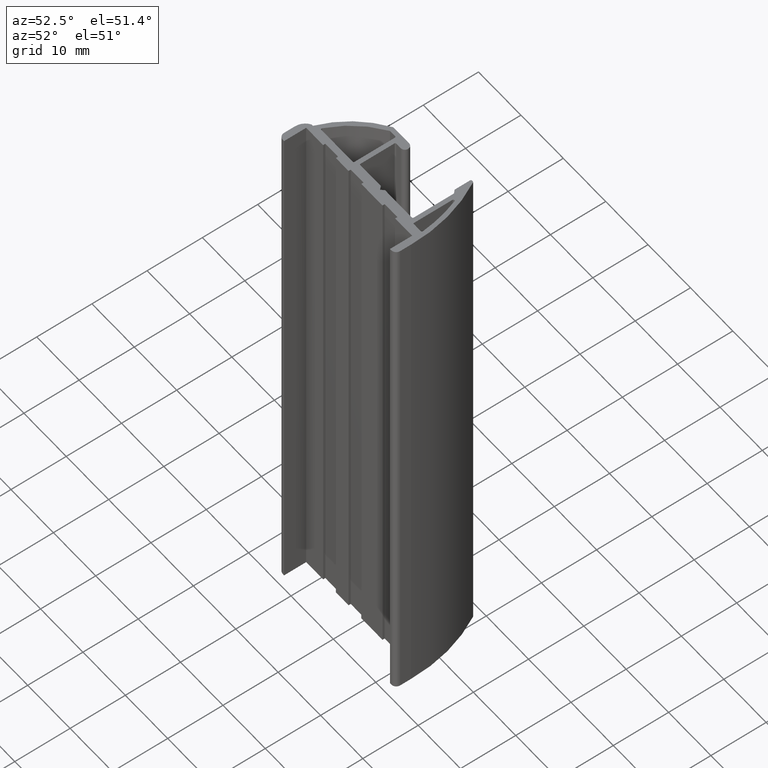
[diagram: clean part render]
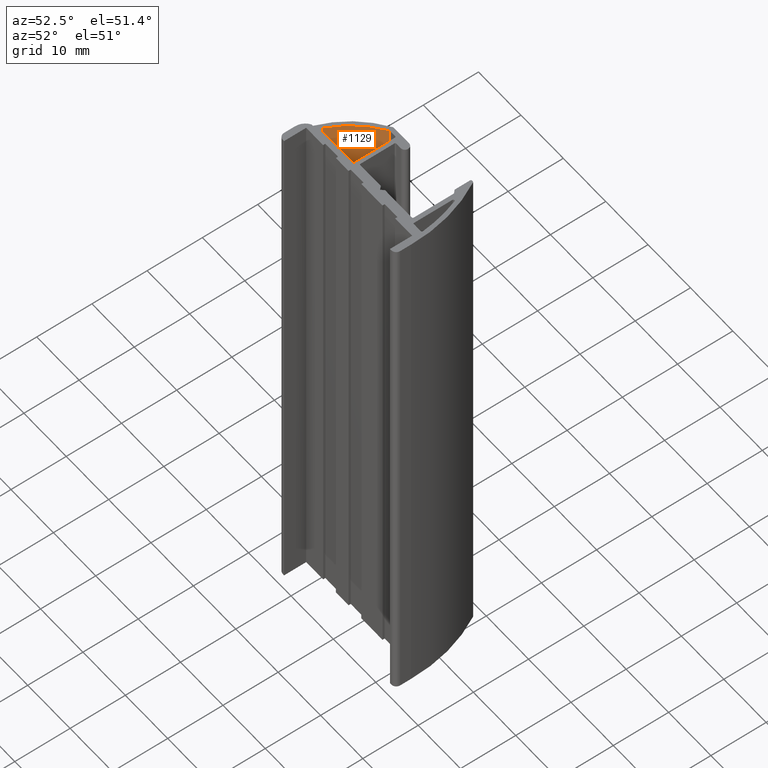
[diagram: same view with one face highlighted and labeled with its STEP entity id]
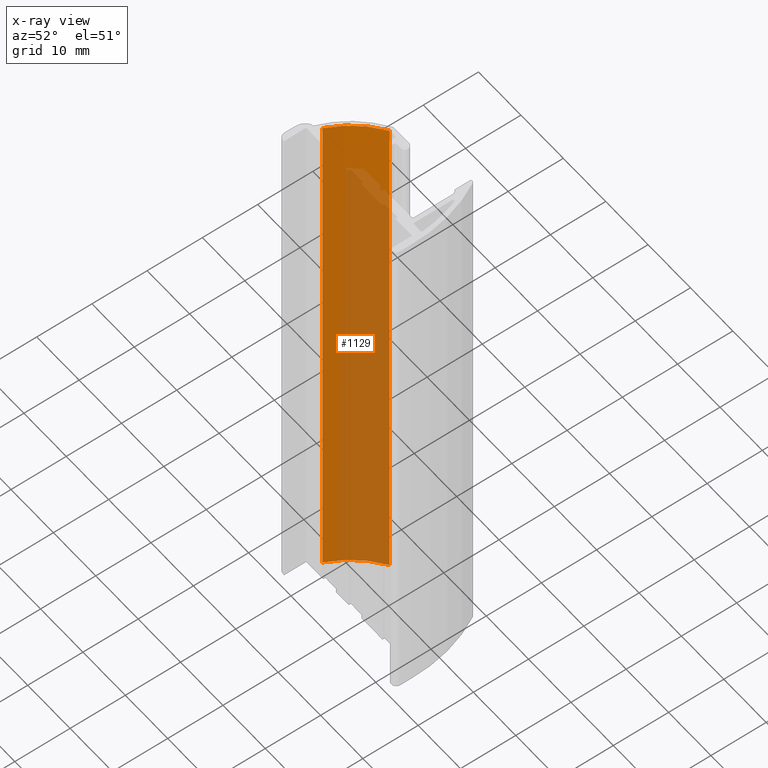
[diagram: x-ray of the same camera — body ghosted, the highlighted face saturated]
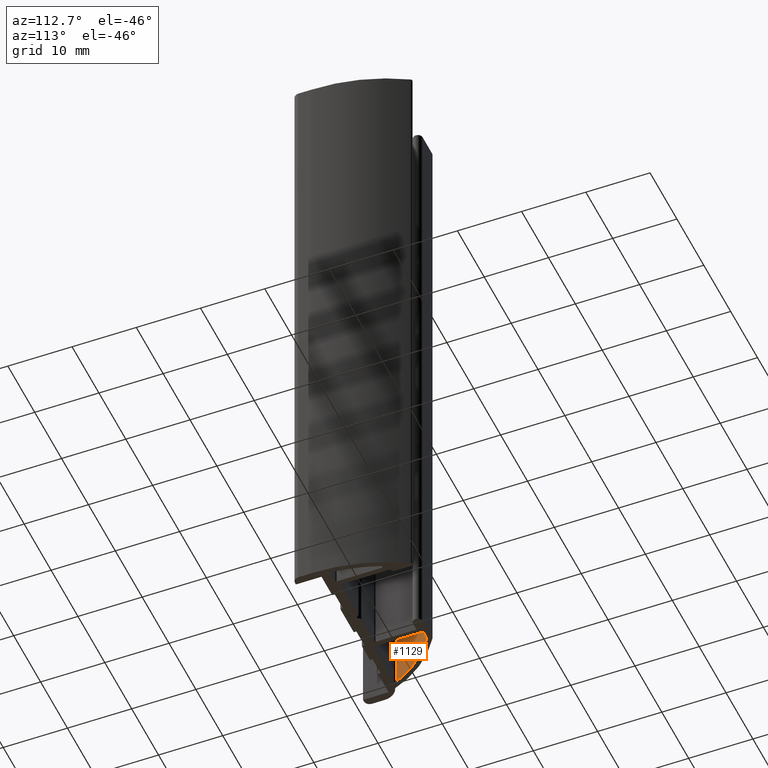
[diagram: same view with one face highlighted and labeled with its STEP entity id]
A machine part, auxiliary view. The second image highlights one B-rep face of the part: STEP entity #1129.
The next image is the same camera in x-ray: the body ghosted, the highlighted face saturated — about 64% of this face is hidden behind the body in this view.
A second angle (auxiliary view) of the same face is appended — the face is thin or edge-on in the first view.
In plain terms, the highlighted cylindrical surface (partial cylindrical patch) has radius 16.9704 mm, axis along (0, 0, 1).
Its self-contained STEP definition (entity closure, byte-faithful):
#21=CIRCLE('',#1193,16.9704085361476);
#22=CIRCLE('',#1194,16.9704085361476);
#62=CYLINDRICAL_SURFACE('',#1192,16.9704085361476);
#84=FACE_OUTER_BOUND('',#143,.T.);
#143=EDGE_LOOP('',(#755,#756,#757,#758));
#208=LINE('',#1636,#337);
#209=LINE('',#1642,#338);
#337=VECTOR('',#1301,100.);
#338=VECTOR('',#1308,100.);
#466=VERTEX_POINT('',#1633);
#467=VERTEX_POINT('',#1635);
#468=VERTEX_POINT('',#1639);
#469=VERTEX_POINT('',#1641);
#581=EDGE_CURVE('',#466,#467,#208,.T.);
#583=EDGE_CURVE('',#468,#466,#21,.T.);
#584=EDGE_CURVE('',#468,#469,#209,.T.);
#585=EDGE_CURVE('',#467,#469,#22,.T.);
#755=ORIENTED_EDGE('',*,*,#581,.F.);
#756=ORIENTED_EDGE('',*,*,#583,.F.);
#757=ORIENTED_EDGE('',*,*,#584,.T.);
#758=ORIENTED_EDGE('',*,*,#585,.F.);
#1129=ADVANCED_FACE('',(#84),#62,.F.);
#1192=AXIS2_PLACEMENT_3D('',#1638,#1304,#1305);
#1193=AXIS2_PLACEMENT_3D('',#1640,#1306,#1307);
#1194=AXIS2_PLACEMENT_3D('',#1643,#1309,#1310);
#1301=DIRECTION('',(0.,0.,1.));
#1304=DIRECTION('center_axis',(0.,0.,1.));
#1305=DIRECTION('ref_axis',(-0.545506788925575,0.838106403290244,0.));
#1306=DIRECTION('center_axis',(0.,0.,1.));
#1307=DIRECTION('ref_axis',(-0.545506788925575,0.838106403290244,0.));
#1308=DIRECTION('',(0.,0.,1.));
#1309=DIRECTION('center_axis',(0.,0.,-1.));
#1310=DIRECTION('ref_axis',(-0.545506788925575,0.838106403290244,0.));
#1633=CARTESIAN_POINT('',(-11.1258171834461,-3.46943642681573,-50.));
#1635=CARTESIAN_POINT('',(-11.1258171834461,-3.46943642681573,50.));
#1636=CARTESIAN_POINT('',(-11.1258171834461,-3.46943642681573,0.));
#1638=CARTESIAN_POINT('Origin',(4.40687588951251,-10.3053863816512,0.));
#1639=CARTESIAN_POINT('',(-4.85059717779655,3.91762167894556,-50.));
#1640=CARTESIAN_POINT('Origin',(4.40687588951251,-10.3053863816512,-50.));
#1641=CARTESIAN_POINT('',(-4.85059717779655,3.91762167894556,50.));
#1642=CARTESIAN_POINT('',(-4.85059717779655,3.91762167894556,0.));
#1643=CARTESIAN_POINT('Origin',(4.40687588951251,-10.3053863816512,50.));